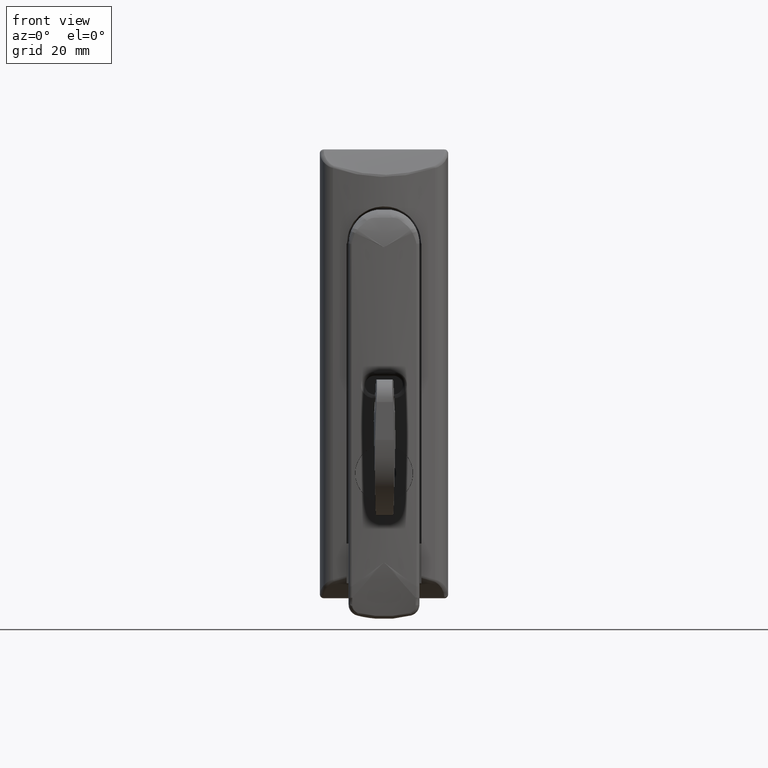
[diagram: clean part render]
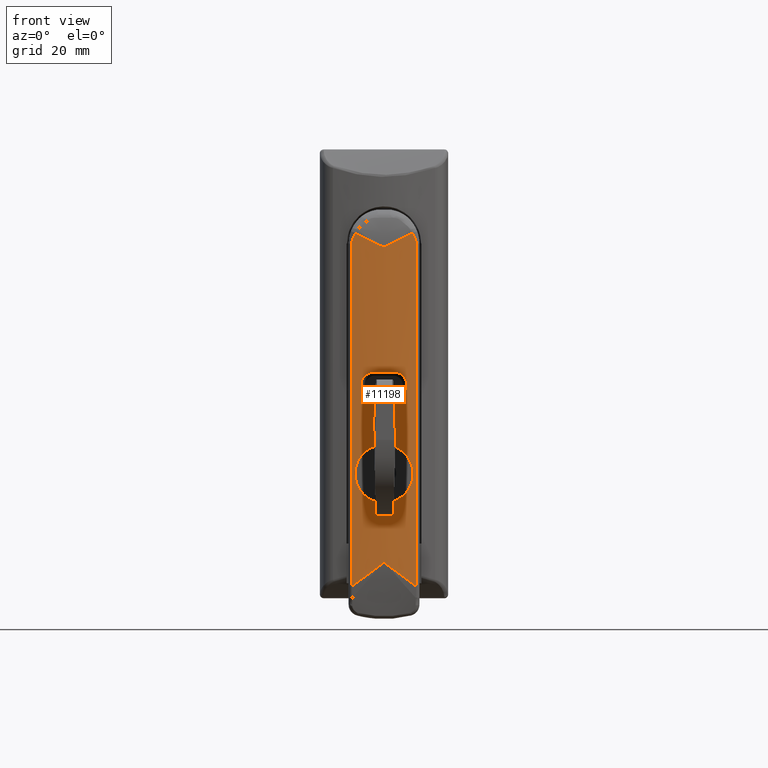
[diagram: same view with one face highlighted and labeled with its STEP entity id]
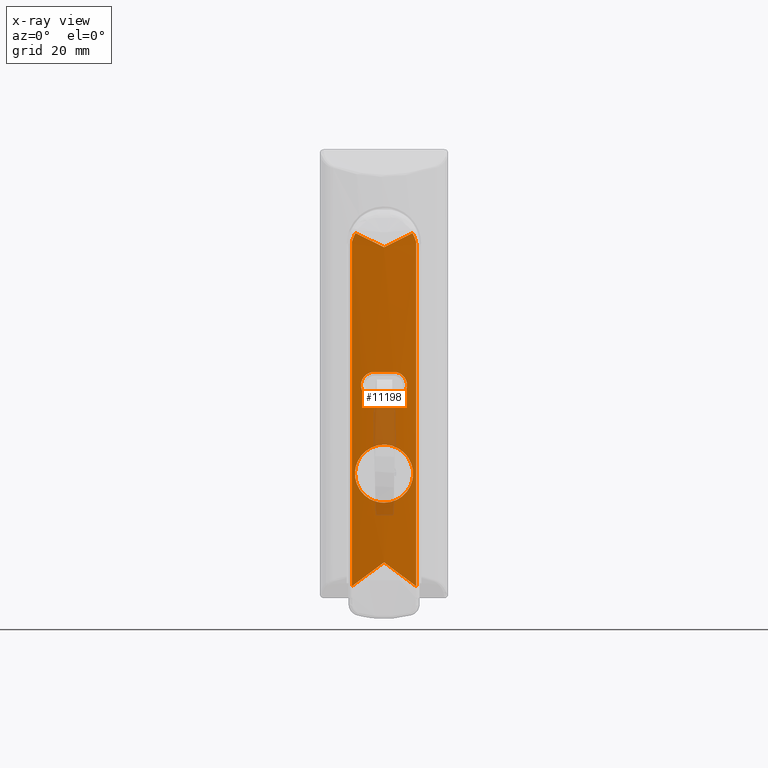
[diagram: x-ray of the same camera — body ghosted, the highlighted face saturated]
A machine part, front view. The second image highlights one B-rep face of the part: STEP entity #11198.
The next image is the same camera in x-ray: the body ghosted, the highlighted face saturated — about 7% of this face is hidden behind the body in this view.
In plain terms, the highlighted face is a freeform B-spline surface patch.
Its self-contained STEP definition (entity closure, byte-faithful):
#8893=CARTESIAN_POINT('',(-7.676304747282953,-3.506943571464569,-60.395863362654133));
#8894=VERTEX_POINT('',#8893);
#8900=CARTESIAN_POINT('',(-0.002898044580842,-3.999999930101148,-68.699999454634124));
#8901=VERTEX_POINT('',#8900);
#8902=CARTESIAN_POINT('',(-7.676304747282953,-3.506943571464569,-60.395863362654133));
#8903=CARTESIAN_POINT('',(-7.691987690900100,-3.504917940224940,-60.595367030660057));
#8904=CARTESIAN_POINT('',(-7.699847044347199,-3.503890847562113,-60.795318656077768));
#8905=CARTESIAN_POINT('',(-7.700099896837275,-3.503857958541859,-61.247080300008747));
#8906=CARTESIAN_POINT('',(-7.687963672984854,-3.505432354019664,-61.499149692832987));
#8907=CARTESIAN_POINT('',(-7.650757023030800,-3.510223468872679,-61.878341832992042));
#8908=CARTESIAN_POINT('',(-7.635170014515124,-3.512226883157759,-62.004815201305583));
#8909=CARTESIAN_POINT('',(-7.598008522959405,-3.516982670403239,-62.255291541149077));
#8910=CARTESIAN_POINT('',(-7.576403623246061,-3.519738960274714,-62.379648845761302));
#8911=CARTESIAN_POINT('',(-7.453505854272870,-3.535331125014765,-62.997104901296368));
#8912=CARTESIAN_POINT('',(-7.308020435401981,-3.553599146403432,-63.477334821456722));
#8913=CARTESIAN_POINT('',(-7.066794803398270,-3.582407720939550,-64.060380612684398));
#8914=CARTESIAN_POINT('',(-7.015554400777616,-3.588467994094906,-64.176119996794640));
#8915=CARTESIAN_POINT('',(-6.906961272463768,-3.601152655111773,-64.405825443683312));
#8916=CARTESIAN_POINT('',(-6.849884757777825,-3.607744376341899,-64.519184774501426));
#8917=CARTESIAN_POINT('',(-6.671235776643670,-3.628093093156317,-64.853320469893617));
#8918=CARTESIAN_POINT('',(-6.412663869084917,-3.656825701866465,-65.284349712319994));
#8919=CARTESIAN_POINT('',(-6.114237575852012,-3.687872918959187,-65.687103142814550));
#8920=CARTESIAN_POINT('',(-5.875366663842975,-3.711698312794137,-65.978514225824469));
#8921=CARTESIAN_POINT('',(-5.793229995721511,-3.719730103163707,-66.073872416219388));
#8922=CARTESIAN_POINT('',(-5.623856980607207,-3.735917990454356,-66.260983288647054));
#8923=CARTESIAN_POINT('',(-5.536532208311725,-3.744082169301564,-66.352824345920041));
#8924=CARTESIAN_POINT('',(-5.087807755649052,-3.784985908103778,-66.801894719768782));
#8925=CARTESIAN_POINT('',(-4.699488649979449,-3.817134944760082,-67.120131227226523));
#8926=CARTESIAN_POINT('',(-4.074554980424711,-3.861857101202561,-67.538405133031461));
#8927=CARTESIAN_POINT('',(-3.859115302148784,-3.876183361782077,-67.667909032502422));
#8928=CARTESIAN_POINT('',(-3.524983156362954,-3.896470862367663,-67.846925910063192));
#8929=CARTESIAN_POINT('',(-3.411515921922814,-3.903046929709678,-67.904173924381354));
#8930=CARTESIAN_POINT('',(-3.182050100382539,-3.915674177551007,-68.012889926742901));
#8931=CARTESIAN_POINT('',(-3.066422871517653,-3.921706415181992,-68.064199387107024));
#8932=CARTESIAN_POINT('',(-2.483898960537928,-3.950380682774042,-68.305802655799198));
#8933=CARTESIAN_POINT('',(-2.003963122744567,-3.968560881237370,-68.451692425978749));
#8934=CARTESIAN_POINT('',(-1.386701554669316,-3.984101392717923,-68.575150379157634));
#8935=CARTESIAN_POINT('',(-1.262374420358794,-3.986850198977217,-68.596870110920449));
#8936=CARTESIAN_POINT('',(-1.011940161570550,-3.991597269978364,-68.634265127970465));
#8937=CARTESIAN_POINT('',(-0.885475872545466,-3.993599475483642,-68.649971262656379));
#8938=CARTESIAN_POINT('',(-0.506332200899911,-3.998396371138286,-68.687531738467783));
#8939=CARTESIAN_POINT('',(-0.254273813274919,-3.999987955651162,-68.699904894660477));
#8940=CARTESIAN_POINT('',(-0.002898044580842,-3.999999930101148,-68.699999454634124));
#8941=B_SPLINE_CURVE_WITH_KNOTS('',3,(#8902,#8903,#8904,#8905,#8906,#8907,#8908,#8909,#8910,#8911,#8912,#8913,#8914,#8915,#8916,#8917,#8918,#8919,#8920,#8921,#8922,#8923,#8924,#8925,#8926,#8927,#8928,#8929,#8930,#8931,#8932,#8933,#8934,#8935,#8936,#8937,#8938,#8939,#8940),.UNSPECIFIED.,.F.,.U.,(4,2,2,2,2,2,2,2,1,2,2,2,2,2,2,2,2,2,2,4),(0.237543365111322,0.249999999999981,0.265624999999979,0.273437499999978,0.281249999999977,0.312499999999974,0.320312499999973,0.328124999999972,0.343749999999971,0.359374999999969,0.367187499999968,0.374999999999967,0.406249999999966,0.421874999999965,0.429687499999965,0.437499999999965,0.468749999999965,0.476562499999965,0.484374999999965,0.499999999999965),.UNSPECIFIED.);
#8942=EDGE_CURVE('',#8894,#8901,#8941,.T.);
#8944=CARTESIAN_POINT('',(7.676263922877238,-3.506940054111026,-61.604140916879118));
#8945=VERTEX_POINT('',#8944);
#8946=CARTESIAN_POINT('',(-0.002898044580842,-3.999999930101148,-68.699999454634124));
#8947=CARTESIAN_POINT('',(0.499854700597551,-4.000024485192864,-68.700188670155697));
#8948=CARTESIAN_POINT('',(0.999895996484099,-3.993730517998560,-68.651613866918254));
#8949=CARTESIAN_POINT('',(1.621476026536765,-3.978216003638106,-68.528404647681072));
#8950=CARTESIAN_POINT('',(1.745916715161408,-3.974720053413829,-68.500523460020958));
#8951=CARTESIAN_POINT('',(1.991932097909736,-3.967053426870690,-68.438970606622490));
#8952=CARTESIAN_POINT('',(2.113722906090700,-3.962879298190796,-68.405272123989775));
#8953=CARTESIAN_POINT('',(2.475513597919142,-3.949397594165829,-68.295570858909784));
#8954=CARTESIAN_POINT('',(2.948366793088818,-3.928864795097678,-68.126394663708993));
#8955=CARTESIAN_POINT('',(3.402457992454604,-3.903865840087726,-67.912073565768395));
#8956=CARTESIAN_POINT('',(3.735902127619316,-3.883685029101822,-67.734159441247101));
#8957=CARTESIAN_POINT('',(3.845860691446514,-3.876719534989658,-67.671987390384473));
#8958=CARTESIAN_POINT('',(4.063357467228838,-3.862353231139808,-67.541802958565754));
#8959=CARTESIAN_POINT('',(4.170924989991159,-3.854948360847812,-67.473744988846647));
#8960=CARTESIAN_POINT('',(4.696775670461197,-3.817376817522775,-67.122595984468248));
#8961=CARTESIAN_POINT('',(5.084308816847844,-3.785261437223499,-66.804456383689171));
#8962=CARTESIAN_POINT('',(5.617171572020836,-3.736753323689831,-66.272604278307469));
#8963=CARTESIAN_POINT('',(5.786661116423961,-3.720526534534853,-66.086147189692070));
#8964=CARTESIAN_POINT('',(6.028313896397529,-3.696453343913610,-65.792234423259771));
#8965=CARTESIAN_POINT('',(6.106548450139992,-3.688494421876316,-65.692122491141404));
#8966=CARTESIAN_POINT('',(6.257164307971800,-3.672893481354555,-65.489303045667015));
#8967=CARTESIAN_POINT('',(6.329740983553853,-3.665232083515752,-65.386361263424348));
#8968=CARTESIAN_POINT('',(6.679178270608027,-3.627747545743624,-64.864101406024133));
#8969=CARTESIAN_POINT('',(6.916089918362253,-3.600389954372300,-64.422347752626266));
#8970=CARTESIAN_POINT('',(7.158328036152651,-3.571481954078553,-63.839762635154152));
#8971=CARTESIAN_POINT('',(7.204056079920702,-3.565965110842936,-63.721712270183232));
#8972=CARTESIAN_POINT('',(7.289955659278419,-3.555513509175013,-63.482476142942780));
#8973=CARTESIAN_POINT('',(7.329888325149630,-3.550607815890043,-63.361926896827093));
#8974=CARTESIAN_POINT('',(7.440239087611436,-3.536956133257837,-62.999180830612971));
#8975=CARTESIAN_POINT('',(7.501484550900122,-3.529245032160276,-62.755192864550807));
#8976=CARTESIAN_POINT('',(7.599857191678090,-3.516766461378253,-62.262989528415119));
#8977=CARTESIAN_POINT('',(7.636983516526761,-3.511998746962800,-62.014774016458013));
#8978=CARTESIAN_POINT('',(7.667280863051044,-3.508098024211216,-61.711099419071033));
#8979=CARTESIAN_POINT('',(7.672050178118524,-3.507483433194162,-61.657669772059428));
#8980=CARTESIAN_POINT('',(7.676263922877238,-3.506940054111026,-61.604140916879118));
#8981=B_SPLINE_CURVE_WITH_KNOTS('',3,(#8946,#8947,#8948,#8949,#8950,#8951,#8952,#8953,#8954,#8955,#8956,#8957,#8958,#8959,#8960,#8961,#8962,#8963,#8964,#8965,#8966,#8967,#8968,#8969,#8970,#8971,#8972,#8973,#8974,#8975,#8976,#8977,#8978,#8979,#8980),.UNSPECIFIED.,.F.,.U.,(4,2,2,2,1,2,2,2,2,2,2,2,2,2,2,2,2,4),(0.499999999999965,0.531249999999965,0.539062499999965,0.546874999999965,0.562499999999964,0.578124999999964,0.585937499999964,0.593749999999964,0.624999999999965,0.640624999999965,0.648437499999966,0.656249999999967,0.687499999999972,0.695312499999973,0.703124999999974,0.718749999999975,0.734374999999977,0.737703389416905),.UNSPECIFIED.);
#8982=EDGE_CURVE('',#8901,#8945,#8981,.T.);
#9014=CARTESIAN_POINT('',(-1.039997E-011,-4.000000000043635,-53.300000000001788));
#9015=VERTEX_POINT('',#9014);
#9016=CARTESIAN_POINT('',(7.676263922877238,-3.506940054111026,-61.604140916879118));
#9017=CARTESIAN_POINT('',(7.691831469070142,-3.504932361421656,-61.406380561395487));
#9018=CARTESIAN_POINT('',(7.699816005811260,-3.503896643561006,-61.207266108203846));
#9019=CARTESIAN_POINT('',(7.700453505115531,-3.503813799949604,-60.497763087261752));
#9020=CARTESIAN_POINT('',(7.650900006354903,-3.510286507604350,-59.997093174643751));
#9021=CARTESIAN_POINT('',(7.504627658200349,-3.528847941832039,-59.258282727083319));
#9022=CARTESIAN_POINT('',(7.443790446975341,-3.536511182520998,-59.014059920751308));
#9023=CARTESIAN_POINT('',(7.333999220673928,-3.550100997780488,-58.650863622454040));
#9024=CARTESIAN_POINT('',(7.294203265481515,-3.554992688935197,-58.530037185565497));
#9025=CARTESIAN_POINT('',(7.208786061566906,-3.565392137563089,-58.290844867904717));
#9026=CARTESIAN_POINT('',(7.163293506268420,-3.570884340867288,-58.172788293868869));
#9027=CARTESIAN_POINT('',(6.922190747790542,-3.599678180822187,-57.590042502558802));
#9028=CARTESIAN_POINT('',(6.686053883159334,-3.626974248357605,-57.147749304042243));
#9029=CARTESIAN_POINT('',(6.337205888784895,-3.664439054797968,-56.624427133438758));
#9030=CARTESIAN_POINT('',(6.264727977226857,-3.672099312507615,-56.521253293157727));
#9031=CARTESIAN_POINT('',(6.114265176623660,-3.687703879383123,-56.317933100394022));
#9032=CARTESIAN_POINT('',(6.036054922254813,-3.695670301247469,-56.217523717918560));
#9033=CARTESIAN_POINT('',(5.795207673921669,-3.719695895370641,-55.923609750625232));
#9034=CARTESIAN_POINT('',(5.626195554048469,-3.735902473754945,-55.737031974419281));
#9035=CARTESIAN_POINT('',(5.094531598667957,-3.784386041868574,-55.204536511553449));
#9036=CARTESIAN_POINT('',(4.707490831475261,-3.816534073307485,-54.885593285509877));
#9037=CARTESIAN_POINT('',(4.181661202387831,-3.854198928944423,-54.533181976526208));
#9038=CARTESIAN_POINT('',(4.074151320411589,-3.861618840823202,-54.464916682610429));
#9039=CARTESIAN_POINT('',(3.857133103187789,-3.875993719733665,-54.334525717069681));
#9040=CARTESIAN_POINT('',(3.747395857211250,-3.882966215040193,-54.272231781215240));
#9041=CARTESIAN_POINT('',(3.414559489937270,-3.903175508604503,-54.093904750843102));
#9042=CARTESIAN_POINT('',(2.961128953092980,-3.928231890709994,-53.878907592967813));
#9043=CARTESIAN_POINT('',(2.488608651001803,-3.948854941743226,-53.708883537488738));
#9044=CARTESIAN_POINT('',(2.126930325400489,-3.962412040980096,-53.598509925372213));
#9045=CARTESIAN_POINT('',(2.005154048084790,-3.966612645195318,-53.564581247650658));
#9046=CARTESIAN_POINT('',(1.759118820160507,-3.974334165718367,-53.502560714668249));
#9047=CARTESIAN_POINT('',(1.634777965331083,-3.977855008403417,-53.474470114318407));
#9048=CARTESIAN_POINT('',(1.012690440018093,-3.993519230655316,-53.350029788473059));
#9049=CARTESIAN_POINT('',(0.509260883839949,-4.000000235432209,-53.299999995439798));
#9050=CARTESIAN_POINT('',(-1.039997E-011,-4.000000000043635,-53.300000000001788));
#9051=B_SPLINE_CURVE_WITH_KNOTS('',3,(#9016,#9017,#9018,#9019,#9020,#9021,#9022,#9023,#9024,#9025,#9026,#9027,#9028,#9029,#9030,#9031,#9032,#9033,#9034,#9035,#9036,#9037,#9038,#9039,#9040,#9041,#9042,#9043,#9044,#9045,#9046,#9047,#9048,#9049,#9050),.UNSPECIFIED.,.F.,.U.,(4,2,2,2,2,2,2,2,2,2,2,2,2,1,2,2,2,4),(0.737703389416905,0.749999999999979,0.781249999999982,0.796874999999984,0.804687499999985,0.812499999999986,0.843749999999988,0.851562499999988,0.859374999999989,0.874999999999990,0.906249999999993,0.914062499999993,0.921874999999994,0.937499999999995,0.953124999999997,0.960937499999997,0.968749999999998,1.0),.UNSPECIFIED.);
#9052=EDGE_CURVE('',#8945,#9015,#9051,.T.);
#9054=CARTESIAN_POINT('',(-1.039997E-011,-4.000000000043635,-53.300000000001788));
#9055=CARTESIAN_POINT('',(-0.509259442975757,-4.000000396210456,-53.300000119457373));
#9056=CARTESIAN_POINT('',(-1.009904439324004,-3.993522948639490,-53.350023797920308));
#9057=CARTESIAN_POINT('',(-1.748502568270825,-3.975024403187531,-53.496952240074350));
#9058=CARTESIAN_POINT('',(-1.992625186549721,-3.967393424221601,-53.558000083147917));
#9059=CARTESIAN_POINT('',(-2.355627479846528,-3.953864728639877,-53.668086125155767));
#9060=CARTESIAN_POINT('',(-2.476347351932889,-3.948997149512737,-53.707963910501611));
#9061=CARTESIAN_POINT('',(-2.715536308316358,-3.938638946563289,-53.793618161970613));
#9062=CARTESIAN_POINT('',(-2.833581012118742,-3.933168504460480,-53.839227141945138));
#9063=CARTESIAN_POINT('',(-3.416219992172628,-3.904486755720590,-54.080897026835792));
#9064=CARTESIAN_POINT('',(-3.858277174204757,-3.877290437297929,-54.317440106713008));
#9065=CARTESIAN_POINT('',(-4.381155161551764,-3.839926930572620,-54.666664840557473));
#9066=CARTESIAN_POINT('',(-4.484232637576722,-3.832285797415929,-54.739211496684419));
#9067=CARTESIAN_POINT('',(-4.687345816037926,-3.816716484589048,-54.889796439132887));
#9068=CARTESIAN_POINT('',(-4.787652087784050,-3.808765736010379,-54.968064094444017));
#9069=CARTESIAN_POINT('',(-5.081471666200027,-3.784761504408337,-55.209261587662517));
#9070=CARTESIAN_POINT('',(-5.267945573170684,-3.768561296278528,-55.378484105624899));
#9071=CARTESIAN_POINT('',(-5.800031921527555,-3.720071959982806,-55.910692361558297));
#9072=CARTESIAN_POINT('',(-6.118572502484281,-3.687885799996193,-56.297981614796093));
#9073=CARTESIAN_POINT('',(-6.470386828479589,-3.650143699248055,-56.823910156890364));
#9074=CARTESIAN_POINT('',(-6.538557453490480,-3.642703712534686,-56.931473242302197));
#9075=CARTESIAN_POINT('',(-6.668807390534299,-3.628280690111791,-57.148684415415971));
#9076=CARTESIAN_POINT('',(-6.731023288679030,-3.621283586010152,-57.258509297915040));
#9077=CARTESIAN_POINT('',(-6.909097476265480,-3.601000203130912,-57.591581126760339));
#9078=CARTESIAN_POINT('',(-7.123707766244334,-3.575844313748194,-58.045252499192621));
#9079=CARTESIAN_POINT('',(-7.293281242702963,-3.555135176594007,-58.517855523988082));
#9080=CARTESIAN_POINT('',(-7.403305863751741,-3.541523802757073,-58.879530340727833));
#9081=CARTESIAN_POINT('',(-7.437116368436016,-3.537306816826312,-59.001294501938922));
#9082=CARTESIAN_POINT('',(-7.498899129941426,-3.529556728797925,-59.247282238701430));
#9083=CARTESIAN_POINT('',(-7.526890629084663,-3.526021099552114,-59.371690639913247));
#9084=CARTESIAN_POINT('',(-7.611178222992765,-3.515327711101510,-59.794899082969927));
#9085=CARTESIAN_POINT('',(-7.652645454928067,-3.509999212102687,-60.094871405838148));
#9086=CARTESIAN_POINT('',(-7.676304747282953,-3.506943571464569,-60.395863362654133));
#9087=B_SPLINE_CURVE_WITH_KNOTS('',3,(#9054,#9055,#9056,#9057,#9058,#9059,#9060,#9061,#9062,#9063,#9064,#9065,#9066,#9067,#9068,#9069,#9070,#9071,#9072,#9073,#9074,#9075,#9076,#9077,#9078,#9079,#9080,#9081,#9082,#9083,#9084,#9085,#9086),.UNSPECIFIED.,.F.,.U.,(4,2,2,2,2,2,2,2,2,2,2,2,1,2,2,2,4),(0.0,0.031249999999998,0.046874999999997,0.054687499999997,0.062499999999996,0.093749999999994,0.101562499999993,0.109374999999992,0.124999999999991,0.156249999999989,0.164062499999988,0.171874999999988,0.187499999999987,0.203124999999986,0.210937499999985,0.218749999999985,0.237543365111322),.UNSPECIFIED.);
#9088=EDGE_CURVE('',#9015,#8894,#9087,.T.);
#9419=CARTESIAN_POINT('',(-1.032532E-011,-4.000000000044055,-0.950405810580660));
#9420=VERTEX_POINT('',#9419);
#9436=CARTESIAN_POINT('',(-7.573160689650760,-3.520141441192854,2.808741684433090));
#9437=VERTEX_POINT('',#9436);
#9450=CARTESIAN_POINT('',(-1.032532E-011,-4.000000000044055,-0.950405810580660));
#9451=CARTESIAN_POINT('',(-0.315842218010362,-4.000000000090030,-0.792836296784968));
#9452=CARTESIAN_POINT('',(-0.632011873884704,-3.997503287612055,-0.635102894647139));
#9453=CARTESIAN_POINT('',(-1.263881555849043,-3.987519061622697,-0.319944699833986));
#9454=CARTESIAN_POINT('',(-1.579750152793933,-3.980031923461248,-0.162435533267046));
#9455=CARTESIAN_POINT('',(-2.527201369225013,-3.950084349779247,0.309793406451389));
#9456=CARTESIAN_POINT('',(-3.158629351943052,-3.920140579907625,0.624214974658597));
#9457=CARTESIAN_POINT('',(-4.421308660254956,-3.840222394553440,1.251783432119889));
#9458=CARTESIAN_POINT('',(-5.052555061467376,-3.790240392357342,1.564927509280478));
#9459=CARTESIAN_POINT('',(-6.313601959798946,-3.670257156461682,2.188704399506007));
#9460=CARTESIAN_POINT('',(-6.943590307455194,-3.600246050395128,2.499431050892518));
#9461=CARTESIAN_POINT('',(-7.573160689650710,-3.520141441192831,2.808741684433166));
#9462=B_SPLINE_CURVE_WITH_KNOTS('',3,(#9450,#9451,#9452,#9453,#9454,#9455,#9456,#9457,#9458,#9459,#9460,#9461),.UNSPECIFIED.,.F.,.U.,(4,2,2,2,2,4),(0.0,0.125000000000000,0.250000000000000,0.500000000000000,0.750000000000000,1.0),.UNSPECIFIED.);
#9463=EDGE_CURVE('',#9420,#9437,#9462,.T.);
#9488=CARTESIAN_POINT('',(7.573160688694210,-3.520141441311925,2.808741683973325));
#9489=VERTEX_POINT('',#9488);
#9490=CARTESIAN_POINT('',(7.573160688694210,-3.520141441311925,2.808741683973325));
#9491=CARTESIAN_POINT('',(6.943590306576218,-3.600246050494268,2.499431050469667));
#9492=CARTESIAN_POINT('',(6.313601958997592,-3.670257156543441,2.188704399120538));
#9493=CARTESIAN_POINT('',(5.052555060821431,-3.790240392409340,1.564927508970547));
#9494=CARTESIAN_POINT('',(4.421308659686837,-3.840222394593053,1.251783431848143));
#9495=CARTESIAN_POINT('',(3.158629351531253,-3.920140579927411,0.624214974463964));
#9496=CARTESIAN_POINT('',(2.527201368891411,-3.950084349791618,0.309793406295434));
#9497=CARTESIAN_POINT('',(1.579750152577641,-3.980031923466203,-0.162435533364704));
#9498=CARTESIAN_POINT('',(1.263881555671756,-3.987519061625789,-0.319944699911970));
#9499=CARTESIAN_POINT('',(0.632011873785613,-3.997503287612674,-0.635102894686039));
#9500=CARTESIAN_POINT('',(0.315842217951557,-4.000000000090029,-0.792836296806569));
#9501=CARTESIAN_POINT('',(-1.036080E-011,-4.000000000090030,-0.950405810591750));
#9502=B_SPLINE_CURVE_WITH_KNOTS('',3,(#9490,#9491,#9492,#9493,#9494,#9495,#9496,#9497,#9498,#9499,#9500,#9501),.UNSPECIFIED.,.F.,.U.,(4,2,2,2,2,4),(0.0,0.250000000000000,0.500000000000000,0.750000000000000,0.875000000000000,1.0),.UNSPECIFIED.);
#9503=EDGE_CURVE('',#9489,#9420,#9502,.T.);
#9554=CARTESIAN_POINT('',(-2.542372881355671,-3.946111968525485,-41.000000000107200));
#9555=VERTEX_POINT('',#9554);
#9566=CARTESIAN_POINT('',(2.542372881356140,-3.946111968524590,-41.000000000107057));
#9567=VERTEX_POINT('',#9566);
#9568=CARTESIAN_POINT('',(2.542372881356179,-3.946111968524555,-41.000000000106951));
#9569=CARTESIAN_POINT('',(3.263690E-013,-4.053936473828325,-41.000000000106951));
#9570=CARTESIAN_POINT('',(-2.542372881355680,-3.946111968525449,-41.000000000106951));
#9578=(BOUNDED_CURVE()B_SPLINE_CURVE(2,(#9568,#9569,#9570),.UNSPECIFIED.,.F.,.U.)CURVE()GEOMETRIC_REPRESENTATION_ITEM()QUASI_UNIFORM_CURVE()RATIONAL_B_SPLINE_CURVE((1.0,0.999101866140583,1.0))REPRESENTATION_ITEM(''));
#9579=EDGE_CURVE('',#9567,#9555,#9578,.T.);
#9783=CARTESIAN_POINT('',(2.542372881356140,-3.946111968524590,-34.000000000107150));
#9784=VERTEX_POINT('',#9783);
#9798=CARTESIAN_POINT('',(2.542372881356140,-3.946111968524590,-34.000000000107150));
#9799=CARTESIAN_POINT('',(2.775564080631210,-3.936222103081399,-34.000000000107157));
#9800=CARTESIAN_POINT('',(3.004951984498812,-3.925131369028025,-34.022316650465889));
#9801=CARTESIAN_POINT('',(3.343559645898417,-3.906872605807549,-34.087945624566792));
#9802=CARTESIAN_POINT('',(3.455509941372376,-3.900516010242014,-34.115220114756198));
#9803=CARTESIAN_POINT('',(3.677532819859001,-3.887295143519683,-34.180813546793992));
#9804=CARTESIAN_POINT('',(3.787967736252942,-3.880404520924139,-34.219333473686063));
#9805=CARTESIAN_POINT('',(4.109632818829841,-3.859477935443951,-34.349307262018627));
#9806=CARTESIAN_POINT('',(4.313389981327940,-3.845068099478600,-34.455491418128958));
#9807=CARTESIAN_POINT('',(4.554796511917787,-3.826885035535399,-34.612568253736256));
#9808=CARTESIAN_POINT('',(4.602407395518893,-3.823240148160905,-34.645211854019927));
#9809=CARTESIAN_POINT('',(4.696265676875308,-3.815945234954345,-34.712998519652473));
#9810=CARTESIAN_POINT('',(4.742602931130022,-3.812287991073871,-34.748214078892389));
#9811=CARTESIAN_POINT('',(4.878898397694410,-3.801376736251276,-34.857203541803550));
#9812=CARTESIAN_POINT('',(4.965478840428617,-3.794237689230475,-34.933745792861060));
#9813=CARTESIAN_POINT('',(5.212729064285401,-3.773362122889678,-35.174706924045360));
#9814=CARTESIAN_POINT('',(5.361028692661651,-3.760160160839591,-35.350350292675053));
#9815=CARTESIAN_POINT('',(5.525086259284222,-3.745079358309842,-35.589286286864493));
#9816=CARTESIAN_POINT('',(5.556905265729101,-3.742127027035178,-35.638189925447293));
#9817=CARTESIAN_POINT('',(5.617887335047231,-3.736423392578571,-35.737266501012897));
#9818=CARTESIAN_POINT('',(5.647021602890898,-3.733674982332375,-35.787373908649222));
#9819=CARTESIAN_POINT('',(5.730424382456267,-3.725751195600124,-35.939374681639691));
#9820=CARTESIAN_POINT('',(5.830980508074278,-3.716042585468870,-36.146510508496263));
#9821=CARTESIAN_POINT('',(5.910507562756485,-3.708182828706404,-36.362477285663850));
#9822=CARTESIAN_POINT('',(5.962134594380012,-3.703042218762790,-36.527821545301443));
#9823=CARTESIAN_POINT('',(5.978004803946072,-3.701454514018900,-36.583498842750501));
#9824=CARTESIAN_POINT('',(6.007014802269670,-3.698542575935487,-36.696000996052277));
#9825=CARTESIAN_POINT('',(6.020182046490146,-3.697215557609949,-36.752983256946152));
#9826=CARTESIAN_POINT('',(6.078450277680046,-3.691327991061836,-37.037902753927163));
#9827=CARTESIAN_POINT('',(6.101524010212600,-3.688955467428044,-37.267078364170573));
#9828=CARTESIAN_POINT('',(6.101778962804428,-3.688929404932310,-37.612652101536362));
#9829=CARTESIAN_POINT('',(6.096096015757671,-3.689511223000422,-37.728147266541562));
#9830=CARTESIAN_POINT('',(6.078650942987681,-3.691289455747117,-37.901860012884633));
#9831=CARTESIAN_POINT('',(6.071330113121374,-3.692034875832285,-37.959881249335652));
#9832=CARTESIAN_POINT('',(6.053875736535776,-3.693807597829241,-38.074730817327442));
#9833=CARTESIAN_POINT('',(6.043728811075962,-3.694836264245615,-38.131728525842128));
#9834=CARTESIAN_POINT('',(5.986025612437936,-3.700667082694382,-38.414621155435803));
#9835=CARTESIAN_POINT('',(5.917765537067550,-3.707522920445608,-38.634288737260327));
#9836=CARTESIAN_POINT('',(5.804818592588135,-3.718544827026509,-38.900573533672883));
#9837=CARTESIAN_POINT('',(5.780835489908570,-3.720872334110177,-38.953411734227792));
#9838=CARTESIAN_POINT('',(5.730029781690105,-3.725768391954734,-39.058235260396593));
#9839=CARTESIAN_POINT('',(5.703297384014706,-3.728328136021928,-39.110018996166573));
#9840=CARTESIAN_POINT('',(5.619729278828543,-3.736268503314163,-39.262454648013318));
#9841=CARTESIAN_POINT('',(5.559319797530094,-3.741930174768650,-39.360639626139282));
#9842=CARTESIAN_POINT('',(5.364391226242090,-3.759855565525589,-39.645173980695127));
#9843=CARTESIAN_POINT('',(5.216262136417505,-3.773059278000833,-39.821641676277963));
#9844=CARTESIAN_POINT('',(4.882748962379020,-3.801227150432481,-40.147085951923529));
#9845=CARTESIAN_POINT('',(4.702824847089127,-3.815722752055786,-40.290756381243838));
#9846=CARTESIAN_POINT('',(4.414140561371788,-3.837485538630093,-40.479126162897167));
#9847=CARTESIAN_POINT('',(4.314755673354138,-3.844744653333852,-40.537358951788917));
#9848=CARTESIAN_POINT('',(4.109553387084507,-3.859186012693002,-40.644548125826439));
#9849=CARTESIAN_POINT('',(4.003396000172599,-3.866387530172124,-40.693580643470682));
#9850=CARTESIAN_POINT('',(3.681866621610109,-3.887310842417930,-40.823615252315783));
#9851=CARTESIAN_POINT('',(3.461502369246501,-3.900495529874696,-40.888893270963003));
#9852=CARTESIAN_POINT('',(3.122044600019680,-3.918825742563920,-40.955134705478223));
#9853=CARTESIAN_POINT('',(3.007201993055606,-3.924704567665176,-40.971917001388199));
#9854=CARTESIAN_POINT('',(2.775253424570334,-3.935894502196315,-40.994379909020033));
#9855=CARTESIAN_POINT('',(2.658968713493016,-3.941167025942462,-41.000000000107043));
#9856=CARTESIAN_POINT('',(2.542372881356139,-3.946111968524580,-41.000000000107057));
#9857=B_SPLINE_CURVE_WITH_KNOTS('',3,(#9798,#9799,#9800,#9801,#9802,#9803,#9804,#9805,#9806,#9807,#9808,#9809,#9810,#9811,#9812,#9813,#9814,#9815,#9816,#9817,#9818,#9819,#9820,#9821,#9822,#9823,#9824,#9825,#9826,#9827,#9828,#9829,#9830,#9831,#9832,#9833,#9834,#9835,#9836,#9837,#9838,#9839,#9840,#9841,#9842,#9843,#9844,#9845,#9846,#9847,#9848,#9849,#9850,#9851,#9852,#9853,#9854,#9855,#9856),.UNSPECIFIED.,.F.,.U.,(4,2,2,2,2,2,2,2,2,2,2,1,2,2,2,2,2,2,2,2,2,2,2,2,2,2,2,2,2,4),(0.0,0.062499999999996,0.093749999999994,0.124999999999992,0.187499999999987,0.203124999999987,0.218749999999986,0.249999999999984,0.312499999999983,0.328124999999983,0.343749999999983,0.374999999999984,0.406249999999985,0.421874999999985,0.437499999999986,0.499999999999987,0.531249999999987,0.546874999999988,0.562499999999989,0.624999999999990,0.640624999999991,0.656249999999992,0.687499999999992,0.749999999999993,0.812499999999995,0.843749999999996,0.874999999999997,0.937499999999998,0.968749999999999,1.0),.UNSPECIFIED.);
#9858=EDGE_CURVE('',#9784,#9567,#9857,.T.);
#10051=CARTESIAN_POINT('',(-2.542372881355666,-3.946111968525485,-34.000000000107200));
#10052=VERTEX_POINT('',#10051);
#10063=CARTESIAN_POINT('',(-2.542372881355671,-3.946111968525485,-41.000000000107200));
#10064=CARTESIAN_POINT('',(-2.775564080630754,-3.936222103082376,-41.000000000107228));
#10065=CARTESIAN_POINT('',(-3.004951984498370,-3.925131369029090,-40.977683349748482));
#10066=CARTESIAN_POINT('',(-3.343559645897997,-3.906872605808734,-40.912054375647607));
#10067=CARTESIAN_POINT('',(-3.455509941371961,-3.900516010243225,-40.884779885458173));
#10068=CARTESIAN_POINT('',(-3.677532819858604,-3.887295143520972,-40.819186453420407));
#10069=CARTESIAN_POINT('',(-3.787967736252548,-3.880404520925474,-40.780666526528343));
#10070=CARTESIAN_POINT('',(-4.109632818829468,-3.859477935445399,-40.650692738195779));
#10071=CARTESIAN_POINT('',(-4.313389981327582,-3.845068099480120,-40.544508582085420));
#10072=CARTESIAN_POINT('',(-4.554796511917442,-3.826885035537000,-40.387431746478129));
#10073=CARTESIAN_POINT('',(-4.602407395518555,-3.823240148162530,-40.354788146194458));
#10074=CARTESIAN_POINT('',(-4.696265676874979,-3.815945234956004,-40.287001480561912));
#10075=CARTESIAN_POINT('',(-4.742602931129699,-3.812287991075534,-40.251785921322018));
#10076=CARTESIAN_POINT('',(-4.878898397694099,-3.801376736252985,-40.142796458410828));
#10077=CARTESIAN_POINT('',(-4.965478840428304,-3.794237689232215,-40.066254207353310));
#10078=CARTESIAN_POINT('',(-5.212729064285106,-3.773362122891505,-39.825293076169039));
#10079=CARTESIAN_POINT('',(-5.361028692661364,-3.760160160841469,-39.649649707539332));
#10080=CARTESIAN_POINT('',(-5.525086259283948,-3.745079358311778,-39.410713713349871));
#10081=CARTESIAN_POINT('',(-5.556905265728834,-3.742127027037130,-39.361810074767057));
#10082=CARTESIAN_POINT('',(-5.617887335046967,-3.736423392580547,-39.262733499201453));
#10083=CARTESIAN_POINT('',(-5.647021602890635,-3.733674982334354,-39.212626091565141));
#10084=CARTESIAN_POINT('',(-5.730424382456011,-3.725751195602134,-39.060625318574672));
#10085=CARTESIAN_POINT('',(-5.830980407135186,-3.716042707553836,-38.853489444760072));
#10086=CARTESIAN_POINT('',(-5.910507562756235,-3.708182828708476,-38.637522714550492));
#10087=CARTESIAN_POINT('',(-5.962134594379763,-3.703042218764880,-38.472178454912893));
#10088=CARTESIAN_POINT('',(-5.978004803945827,-3.701454514020999,-38.416501157463820));
#10089=CARTESIAN_POINT('',(-6.007014802269428,-3.698542575937597,-38.303999004162051));
#10090=CARTESIAN_POINT('',(-6.020182046489907,-3.697215557612062,-38.247016743268148));
#10091=CARTESIAN_POINT('',(-6.078450277679809,-3.691327991063969,-37.962097246287129));
#10092=CARTESIAN_POINT('',(-6.101524010212361,-3.688955467430185,-37.732921636043763));
#10093=CARTESIAN_POINT('',(-6.101778962804190,-3.688929404934450,-37.387347898677930));
#10094=CARTESIAN_POINT('',(-6.096096015757430,-3.689511223002560,-37.271852733672731));
#10095=CARTESIAN_POINT('',(-6.078650942987440,-3.691289455749250,-37.098139987329660));
#10096=CARTESIAN_POINT('',(-6.071330113121133,-3.692034875834414,-37.040118750878619));
#10097=CARTESIAN_POINT('',(-6.053875736535534,-3.693807597831367,-36.925269182886822));
#10098=CARTESIAN_POINT('',(-6.043728811075725,-3.694836264247737,-36.868271474372143));
#10099=CARTESIAN_POINT('',(-5.986025612437691,-3.700667082696482,-36.585378844778482));
#10100=CARTESIAN_POINT('',(-5.917765537067301,-3.707522920447684,-36.365711262953930));
#10101=CARTESIAN_POINT('',(-5.804818592587876,-3.718544827028543,-36.099426466541388));
#10102=CARTESIAN_POINT('',(-5.780835489908312,-3.720872334112203,-36.046588265986472));
#10103=CARTESIAN_POINT('',(-5.730029781689840,-3.725768391956742,-35.941764739817657));
#10104=CARTESIAN_POINT('',(-5.703297384014443,-3.728328136023928,-35.889981004047662));
#10105=CARTESIAN_POINT('',(-5.619729278828273,-3.736268503316134,-35.737545352200918));
#10106=CARTESIAN_POINT('',(-5.559319797529819,-3.741930174770600,-35.639360374074947));
#10107=CARTESIAN_POINT('',(-5.364391226241809,-3.759855565527473,-35.354826019519088));
#10108=CARTESIAN_POINT('',(-5.216262136417206,-3.773059278002671,-35.178358323936251));
#10109=CARTESIAN_POINT('',(-4.882748962378702,-3.801227150434203,-34.852914048290650));
#10110=CARTESIAN_POINT('',(-4.702824847088794,-3.815722752057438,-34.709243618970348));
#10111=CARTESIAN_POINT('',(-4.414140561371435,-3.837485538631646,-34.520873837317033));
#10112=CARTESIAN_POINT('',(-4.314755673353774,-3.844744653335369,-34.462641048425283));
#10113=CARTESIAN_POINT('',(-4.109553387084127,-3.859186012694447,-34.355451874387761));
#10114=CARTESIAN_POINT('',(-4.003396000172216,-3.866387530173533,-34.306419356743518));
#10115=CARTESIAN_POINT('',(-3.681866621609709,-3.887310842419230,-34.176384747898418));
#10116=CARTESIAN_POINT('',(-3.461502369246085,-3.900495529875925,-34.111106729251219));
#10117=CARTESIAN_POINT('',(-3.122044600019240,-3.918825742565027,-34.044865294735992));
#10118=CARTESIAN_POINT('',(-3.007201993055155,-3.924704567666239,-34.028082998826036));
#10119=CARTESIAN_POINT('',(-2.775253424569872,-3.935894502197296,-34.005620091194203));
#10120=CARTESIAN_POINT('',(-2.658968713492548,-3.941167025943408,-34.000000000107192));
#10121=CARTESIAN_POINT('',(-2.542372881355668,-3.946111968525485,-34.000000000107200));
#10122=B_SPLINE_CURVE_WITH_KNOTS('',3,(#10063,#10064,#10065,#10066,#10067,#10068,#10069,#10070,#10071,#10072,#10073,#10074,#10075,#10076,#10077,#10078,#10079,#10080,#10081,#10082,#10083,#10084,#10085,#10086,#10087,#10088,#10089,#10090,#10091,#10092,#10093,#10094,#10095,#10096,#10097,#10098,#10099,#10100,#10101,#10102,#10103,#10104,#10105,#10106,#10107,#10108,#10109,#10110,#10111,#10112,#10113,#10114,#10115,#10116,#10117,#10118,#10119,#10120,#10121),.UNSPECIFIED.,.F.,.U.,(4,2,2,2,2,2,2,2,2,2,2,1,2,2,2,2,2,2,2,2,2,2,2,2,2,2,2,2,2,4),(0.0,0.062499999999996,0.093749999999994,0.124999999999993,0.187499999999989,0.203124999999988,0.218749999999987,0.249999999999986,0.312499999999984,0.328124999999984,0.343749999999984,0.374999999999984,0.406249999999985,0.421874999999984,0.437499999999983,0.499999999999981,0.531249999999981,0.546874999999981,0.562499999999981,0.624999999999982,0.640624999999982,0.656249999999982,0.687499999999983,0.749999999999987,0.812499999999990,0.843749999999992,0.874999999999993,0.937499999999997,0.968749999999998,1.0),.UNSPECIFIED.);
#10123=EDGE_CURVE('',#9555,#10052,#10122,.T.);
#10148=CARTESIAN_POINT('',(-2.542372881355675,-3.946111968525449,-34.000000000107150));
#10149=CARTESIAN_POINT('',(2.830009E-013,-4.053936473828325,-34.000000000107143));
#10150=CARTESIAN_POINT('',(2.542372881356131,-3.946111968524555,-34.000000000107150));
#10158=(BOUNDED_CURVE()B_SPLINE_CURVE(2,(#10148,#10149,#10150),.UNSPECIFIED.,.F.,.U.)CURVE()GEOMETRIC_REPRESENTATION_ITEM()QUASI_UNIFORM_CURVE()RATIONAL_B_SPLINE_CURVE((1.0,0.999101866140583,1.0))REPRESENTATION_ITEM(''));
#10159=EDGE_CURVE('',#10052,#9784,#10158,.T.);
#10313=CARTESIAN_POINT('',(-8.542372882448460,-3.388785688445259,-90.863032938985995));
#10314=VERTEX_POINT('',#10313);
#10315=CARTESIAN_POINT('',(-1.032532E-011,-4.000000000089600,-84.499999999966107));
#10316=VERTEX_POINT('',#10315);
#10317=CARTESIAN_POINT('',(-8.542372882448373,-3.388785688445238,-90.863032938986180));
#10318=CARTESIAN_POINT('',(-7.833350339897021,-3.490770177104611,-90.335580822319088));
#10319=CARTESIAN_POINT('',(-7.123443760581557,-3.579926539893918,-89.807212222128186));
#10320=CARTESIAN_POINT('',(-5.701811776665990,-3.732741775116895,-88.748736285452040));
#10321=CARTESIAN_POINT('',(-4.989907420360711,-3.796410144842287,-88.218495535839452));
#10322=CARTESIAN_POINT('',(-3.565476648096314,-3.898223834650034,-87.157295676773018));
#10323=CARTESIAN_POINT('',(-2.852882697597467,-3.936383604785621,-86.626286332198518));
#10324=CARTESIAN_POINT('',(-1.783379711795087,-3.974551366710900,-85.829221035845848));
#10325=CARTESIAN_POINT('',(-1.426753345087809,-3.984094829780868,-85.563423296688683));
#10326=CARTESIAN_POINT('',(-0.713403030992563,-3.996819197114286,-85.031739224653535));
#10327=CARTESIAN_POINT('',(-0.356564757408221,-4.000000000090035,-84.765767669688429));
#10328=CARTESIAN_POINT('',(-1.035996E-011,-4.000000000090035,-84.499999999993690));
#10329=B_SPLINE_CURVE_WITH_KNOTS('',3,(#10317,#10318,#10319,#10320,#10321,#10322,#10323,#10324,#10325,#10326,#10327,#10328),.UNSPECIFIED.,.F.,.U.,(4,2,2,2,2,4),(0.0,0.250000000000001,0.500000000000001,0.750000000000002,0.875000000000001,1.0),.UNSPECIFIED.);
#10330=EDGE_CURVE('',#10314,#10316,#10329,.T.);
#10400=CARTESIAN_POINT('',(8.542200965914319,-3.388810416344001,-90.862905047801988));
#10401=VERTEX_POINT('',#10400);
#10414=CARTESIAN_POINT('',(-1.032532E-011,-4.000000000089600,-84.499999999966107));
#10415=CARTESIAN_POINT('',(0.356557552711936,-4.000000000090035,-84.765762299631902));
#10416=CARTESIAN_POINT('',(0.713388616191402,-3.996819325648610,-85.031728480510552));
#10417=CARTESIAN_POINT('',(1.426724518385047,-3.984095472557187,-85.563401811509891));
#10418=CARTESIAN_POINT('',(1.783343686570291,-3.974552395053378,-85.829194186166561));
#10419=CARTESIAN_POINT('',(2.852825086939890,-3.936386175317180,-86.626243399456513));
#10420=CARTESIAN_POINT('',(3.565404663024895,-3.898227947060466,-87.157242037661803));
#10421=CARTESIAN_POINT('',(4.989806714722954,-3.796418375675251,-88.218420520531339));
#10422=CARTESIAN_POINT('',(5.701696765449404,-3.732752579890364,-88.748650630547971));
#10423=CARTESIAN_POINT('',(7.123300244706810,-3.579943524639549,-89.807105390741583));
#10424=CARTESIAN_POINT('',(7.833192606795360,-3.490790770011010,-90.335463440527192));
#10425=CARTESIAN_POINT('',(8.542200965914221,-3.388810416343980,-90.862905047802101));
#10426=B_SPLINE_CURVE_WITH_KNOTS('',3,(#10414,#10415,#10416,#10417,#10418,#10419,#10420,#10421,#10422,#10423,#10424,#10425),.UNSPECIFIED.,.F.,.U.,(4,2,2,2,2,4),(0.0,0.124999999999999,0.249999999999998,0.499999999999999,0.749999999999999,1.0),.UNSPECIFIED.);
#10427=EDGE_CURVE('',#10316,#10401,#10426,.T.);
#11118=CARTESIAN_POINT('',(9.385175466707166,-3.261441776838235,-93.204827304571481));
#11119=CARTESIAN_POINT('',(9.385175466707166,-3.261441776838235,5.209080909158203));
#11120=CARTESIAN_POINT('',(-0.000565576542688,-4.747852230838253,-93.204827304571481));
#11121=CARTESIAN_POINT('',(-0.000565576542688,-4.747852230838253,5.209080909158205));
#11122=CARTESIAN_POINT('',(-9.386278940516281,-3.261267010262943,-93.204827304571481));
#11123=CARTESIAN_POINT('',(-9.386278940516281,-3.261267010262943,5.209080909158205));
#11131=(BOUNDED_SURFACE()B_SPLINE_SURFACE(1,2,((#11118,#11120,#11122),(#11119,#11121,#11123)),.UNSPECIFIED.,.F.,.F.,.U.)B_SPLINE_SURFACE_WITH_KNOTS((2,2),(3,3),(0.0,98.413908213729698),(0.0,18.887713238542169),.UNSPECIFIED.)GEOMETRIC_REPRESENTATION_ITEM()RATIONAL_B_SPLINE_SURFACE(((0.997653460486219,0.984695807356622,0.996285522087393),(0.997653460486219,0.984695807356622,0.996285522087393)))REPRESENTATION_ITEM('')SURFACE());
#11132=ORIENTED_EDGE('',*,*,#9463,.T.);
#11133=CARTESIAN_POINT('',(-8.542372881270369,-3.388785688614710,-1.887379E-012));
#11134=VERTEX_POINT('',#11133);
#11135=CARTESIAN_POINT('',(-7.573160689650760,-3.520141441192854,2.808741684433090));
#11136=CARTESIAN_POINT('',(-7.612626235316011,-3.515098025365587,2.713410614602583));
#11137=CARTESIAN_POINT('',(-7.704745583635235,-3.503325828340890,2.490891563519642));
#11138=CARTESIAN_POINT('',(-7.874567098398209,-3.481114822343344,2.134665480533870));
#11139=CARTESIAN_POINT('',(-8.041556776430891,-3.458744317324752,1.784143572088449));
#11140=CARTESIAN_POINT('',(-8.206604863865614,-3.436175673197214,1.425593917748858));
#11141=CARTESIAN_POINT('',(-8.342714321108055,-3.417212516864743,1.078270117279039));
#11142=CARTESIAN_POINT('',(-8.455536967903131,-3.401235503919757,0.698371870375513));
#11143=CARTESIAN_POINT('',(-8.527782112605275,-3.390886752984041,0.341710115104420));
#11144=CARTESIAN_POINT('',(-8.537649591988272,-3.389465840225928,0.110617595347109));
#11145=CARTESIAN_POINT('',(-8.542372881355798,-3.388785688602389,0.0));
#11146=B_SPLINE_CURVE_WITH_KNOTS('',3,(#11135,#11136,#11137,#11138,#11139,#11140,#11141,#11142,#11143,#11144,#11145),.UNSPECIFIED.,.F.,.U.,(4,1,1,1,1,1,1,1,4),(0.0,0.103371813867928,0.241287526560952,0.395469025652931,0.492642874463531,0.636949660393500,0.768806035073080,0.889333845656981,1.0),.UNSPECIFIED.);
#11147=EDGE_CURVE('',#9437,#11134,#11146,.T.);
#11148=ORIENTED_EDGE('',*,*,#11147,.T.);
#11149=CARTESIAN_POINT('',(-8.542372881270369,-3.388785688614710,-1.887379E-012));
#11150=CARTESIAN_POINT('',(-8.542372881270264,-3.388785688614698,-30.287677646031980));
#11151=CARTESIAN_POINT('',(-8.542372881270264,-3.388785688614698,-60.575355292063968));
#11152=CARTESIAN_POINT('',(-8.542372881270264,-3.388785688614698,-90.863032938095941));
#11153=QUASI_UNIFORM_CURVE('',3,(#11149,#11150,#11151,#11152),.UNSPECIFIED.,.F.,.U.);
#11154=EDGE_CURVE('',#11134,#10314,#11153,.T.);
#11155=ORIENTED_EDGE('',*,*,#11154,.T.);
#11156=ORIENTED_EDGE('',*,*,#10330,.T.);
#11157=ORIENTED_EDGE('',*,*,#10427,.T.);
#11158=CARTESIAN_POINT('',(8.542372881356059,-3.388785688599410,-1.776357E-012));
#11159=VERTEX_POINT('',#11158);
#11160=CARTESIAN_POINT('',(8.542200965914319,-3.388810416344001,-90.862905047801988));
#11161=CARTESIAN_POINT('',(8.542258271061565,-3.388802173762470,-60.575270031868577));
#11162=CARTESIAN_POINT('',(8.542315576208813,-3.388793931180941,-30.287635015935180));
#11163=CARTESIAN_POINT('',(8.542372881356059,-3.388785688599410,-1.776357E-012));
#11164=B_SPLINE_CURVE_WITH_KNOTS('',3,(#11160,#11161,#11162,#11163),.UNSPECIFIED.,.F.,.U.,(4,4),(0.000001407507991,1.0),.UNSPECIFIED.);
#11165=EDGE_CURVE('',#10401,#11159,#11164,.T.);
#11166=ORIENTED_EDGE('',*,*,#11165,.T.);
#11167=CARTESIAN_POINT('',(8.542372881356059,-3.388785688599410,-1.776357E-012));
#11168=CARTESIAN_POINT('',(8.540338623504868,-3.389078447072913,0.073053007990180));
#11169=CARTESIAN_POINT('',(8.536160489121121,-3.389679739698476,0.223095582158870));
#11170=CARTESIAN_POINT('',(8.504647730929005,-3.394204406622930,0.452714782229924));
#11171=CARTESIAN_POINT('',(8.455032633474636,-3.401292914940287,0.692268019765677));
#11172=CARTESIAN_POINT('',(8.385251362616634,-3.411191735169843,0.941778785023271));
#11173=CARTESIAN_POINT('',(8.295857367945597,-3.423749836672527,1.201238676842168));
#11174=CARTESIAN_POINT('',(8.189392563986772,-3.438526290594300,1.464772199082618));
#11175=CARTESIAN_POINT('',(8.043905760717081,-3.458426745833721,1.779648956009159));
#11176=CARTESIAN_POINT('',(7.876760297925516,-3.480825118245009,2.129864568028663));
#11177=CARTESIAN_POINT('',(7.705884600376155,-3.503179487203652,2.487935404931218));
#11178=CARTESIAN_POINT('',(7.613115124841550,-3.515035313081013,2.712168023437461));
#11179=CARTESIAN_POINT('',(7.573160688694292,-3.520141441311881,2.808741683971938));
#11180=B_SPLINE_CURVE_WITH_KNOTS('',3,(#11167,#11168,#11169,#11170,#11171,#11172,#11173,#11174,#11175,#11176,#11177,#11178,#11179),.UNSPECIFIED.,.F.,.U.,(4,1,1,1,1,1,1,1,1,1,4),(0.0,0.073081924838222,0.150101966087469,0.231551433513246,0.317846014387465,0.409335377473456,0.506313015689041,0.602494839805536,0.756928107555823,0.895312543809396,1.0),.UNSPECIFIED.);
#11181=EDGE_CURVE('',#11159,#9489,#11180,.T.);
#11182=ORIENTED_EDGE('',*,*,#11181,.T.);
#11183=ORIENTED_EDGE('',*,*,#9503,.T.);
#11184=EDGE_LOOP('',(#11132,#11148,#11155,#11156,#11157,#11166,#11182,#11183));
#11185=FACE_OUTER_BOUND('',#11184,.T.);
#11186=ORIENTED_EDGE('',*,*,#9858,.T.);
#11187=ORIENTED_EDGE('',*,*,#9579,.T.);
#11188=ORIENTED_EDGE('',*,*,#10123,.T.);
#11189=ORIENTED_EDGE('',*,*,#10159,.T.);
#11190=EDGE_LOOP('',(#11186,#11187,#11188,#11189));
#11191=FACE_BOUND('',#11190,.T.);
#11192=ORIENTED_EDGE('',*,*,#8982,.F.);
#11193=ORIENTED_EDGE('',*,*,#8942,.F.);
#11194=ORIENTED_EDGE('',*,*,#9088,.F.);
#11195=ORIENTED_EDGE('',*,*,#9052,.F.);
#11196=EDGE_LOOP('',(#11192,#11193,#11194,#11195));
#11197=FACE_BOUND('',#11196,.T.);
#11198=ADVANCED_FACE('',(#11185,#11191,#11197),#11131,.T.);